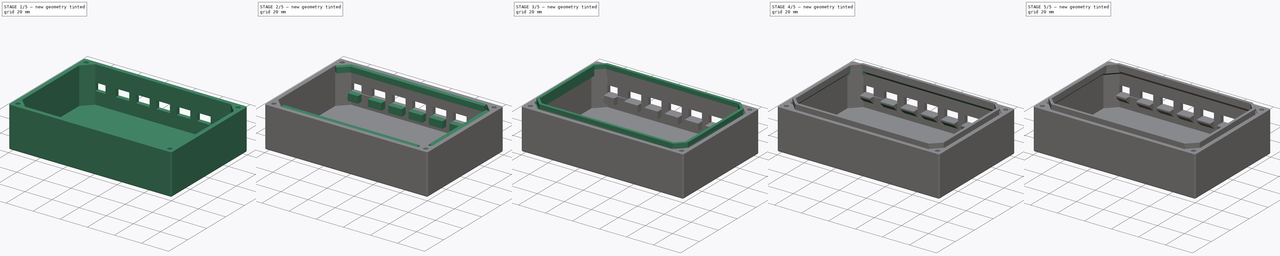
[diagram: build sequence overview — one tinted view per stage of 5, left to right]
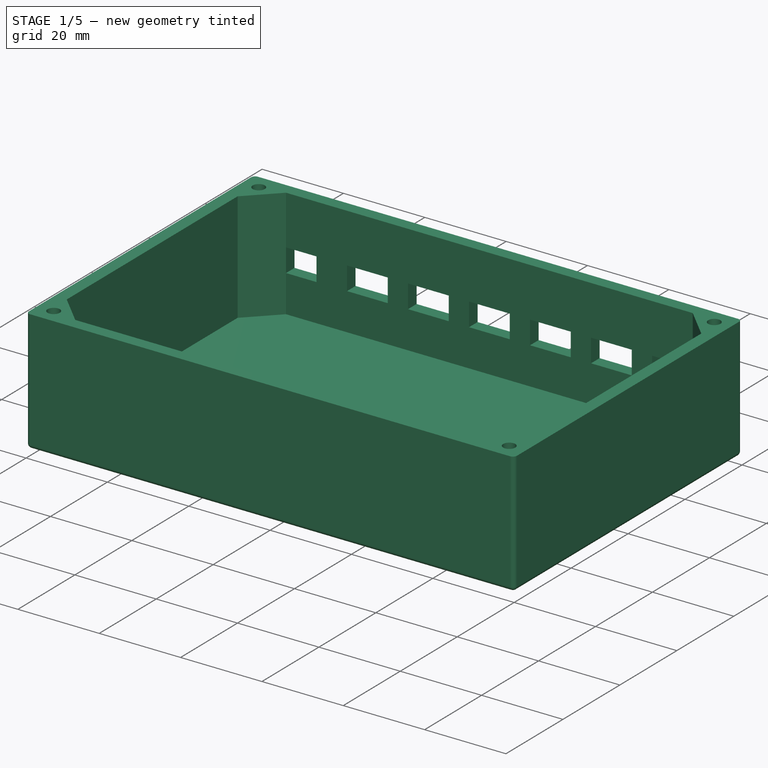
[diagram: stage 1 of 5 — iso view after this stage's code; geometry added in this stage tinted green]
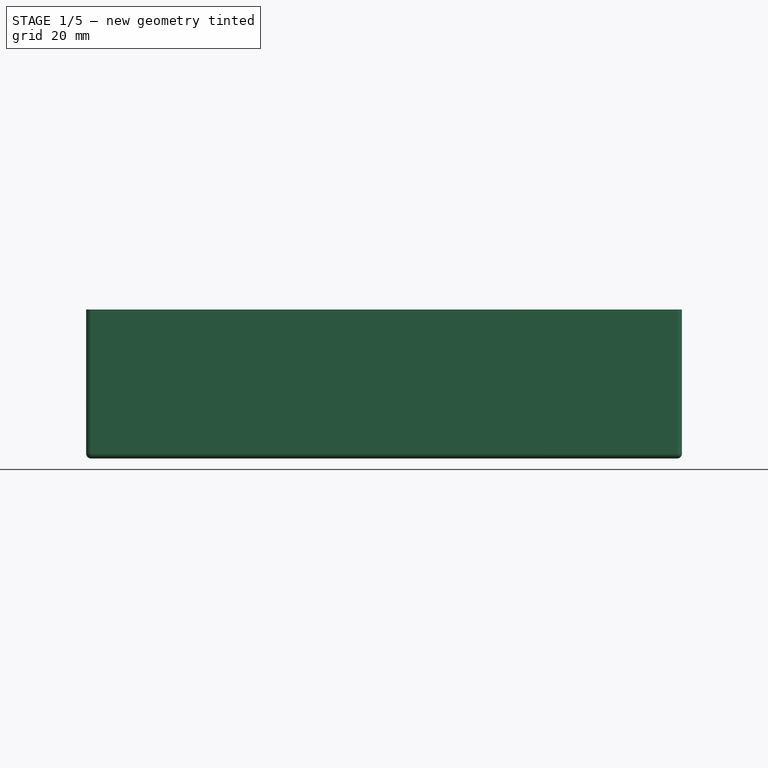
[diagram: stage 1 of 5 — front view after this stage's code; geometry added in this stage tinted green]
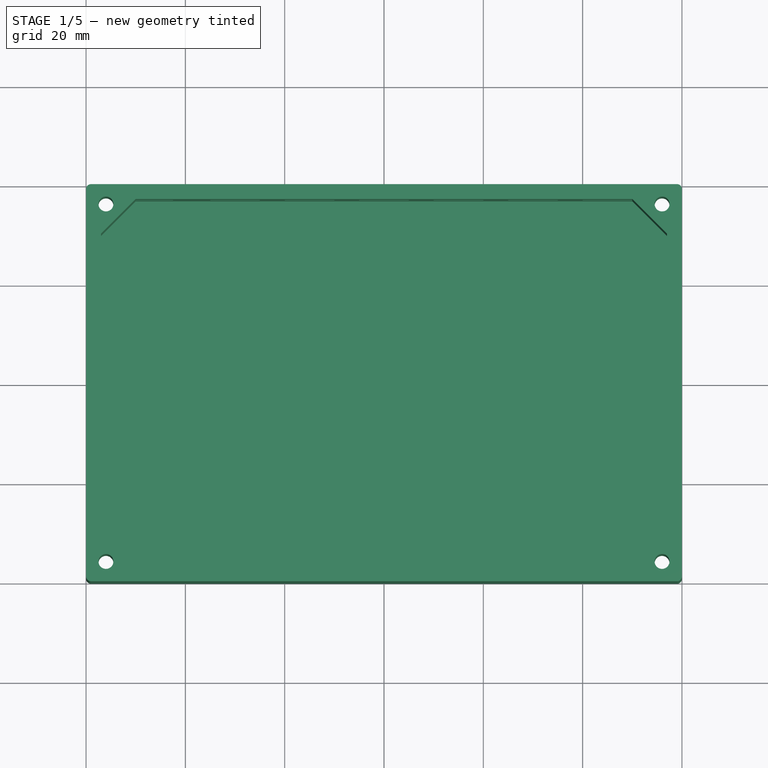
[diagram: stage 1 of 5 — top view after this stage's code; geometry added in this stage tinted green]
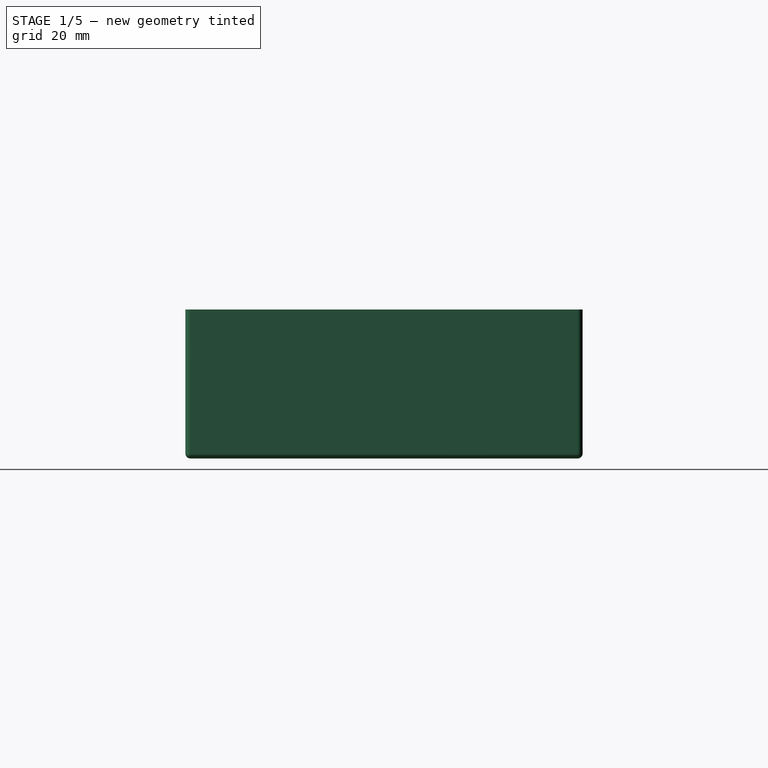
[diagram: stage 1 of 5 — right view after this stage's code; geometry added in this stage tinted green]
FCSTD DOCUMENT  (FreeCAD 0.18R4 (GitTag))
Label: case bottom
License: All rights reserved
LicenseURL: http://en.wikipedia.org/wiki/All_rights_reserved
objects: Sketcher::SketchObject×16, PartDesign::Pad×12, PartDesign::Chamfer×9, PartDesign::Pocket×4, PartDesign::Fillet×1, PartDesign::Body×1
note: 59 computed .brp shape members not serialized (recipe doc carries the construction recipe); baked Part::Feature solids carry a one-line shape summary decoded from their .brp

FEATURE [Sketcher::SketchObject] Sketch
  MapMode = 5
  Support = -> [XY_Plane]
  sketch-geometry (4):
    g0: LineSegment StartX=-60 StartY=40 StartZ=0 EndX=60 EndY=40 EndZ=0
    g1: LineSegment StartX=60 StartY=40 StartZ=0 EndX=60 EndY=-40 EndZ=0
    g2: LineSegment StartX=60 StartY=-40 StartZ=0 EndX=-60 EndY=-40 EndZ=0
    g3: LineSegment StartX=-60 StartY=-40 StartZ=0 EndX=-60 EndY=40 EndZ=0
  constraints (11):
    c: Coincident(g0,g1)
    c: Coincident(g1,g2)
    c: Coincident(g2,g3)
    c: Coincident(g3,g0)
    c: Horizontal(g0)
    c: Horizontal(g2)
    c: Vertical(g1)
    c: Vertical(g3)
    c: DistanceX(g0,g0) = 120
    c: DistanceY(g3,g3) = 80
    c: Symmetric(g2,g0,g-1)
FEATURE [PartDesign::Pad] Pad  label="Main Part"
  Length = 30
  Length2 = 100
  Profile = -> Sketch
  Type = 0
FEATURE [Sketcher::SketchObject] Sketch001
  MapMode = 5
  Placement = pos=(0,0,30) rot=(0,0,1;0rad)
  Support = -> [Pad]
  sketch-geometry (12):
    g0: LineSegment StartX=50 StartY=37 StartZ=0 EndX=-50 EndY=37 EndZ=0
    g1: LineSegment StartX=-50 StartY=37 StartZ=0 EndX=-57 EndY=30 EndZ=0
    g2: LineSegment StartX=-57 StartY=30 StartZ=0 EndX=-57 EndY=-30 EndZ=0
    g3: LineSegment StartX=-57 StartY=-30 StartZ=0 EndX=-50 EndY=-37 EndZ=0
    g4: LineSegment StartX=-50 StartY=-37 StartZ=0 EndX=50 EndY=-37 EndZ=0
    g5: LineSegment StartX=50 StartY=-37 StartZ=0 EndX=57 EndY=-30 EndZ=0
    g6: LineSegment StartX=57 StartY=-30 StartZ=0 EndX=57 EndY=30 EndZ=0
    g7: LineSegment StartX=57 StartY=30 StartZ=0 EndX=50 EndY=37 EndZ=0
    g8: Circle CenterX=-56 CenterY=36 CenterZ=0 NormalX=0 NormalY=0 NormalZ=1 AngleXU=0 Radius=1.5
    g9: Circle CenterX=56 CenterY=36 CenterZ=0 NormalX=0 NormalY=0 NormalZ=1 AngleXU=0 Radius=1.5
    g10: Circle CenterX=-56 CenterY=-36 CenterZ=0 NormalX=0 NormalY=0 NormalZ=1 AngleXU=0 Radius=1.5
    g11: Circle CenterX=56 CenterY=-36 CenterZ=0 NormalX=0 NormalY=0 NormalZ=1 AngleXU=0 Radius=1.5
  constraints (27):
    c: Coincident(g0,g1)
    c: Coincident(g1,g2)
    c: Coincident(g2,g3)
    c: Coincident(g3,g4)
    c: Coincident(g4,g5)
    c: Coincident(g5,g6)
    c: Coincident(g6,g7)
    c: Coincident(g7,g0)
    c: DistanceX(g0) = 50
    c: DistanceY(g0) = 37
    c: DistanceX(g6) = 57
    c: DistanceY(g6) = 30
    c: Symmetric(g0,g4,g-1)
    c: Symmetric(g6,g5,g-1)
    c: Symmetric(g4,g3,g-2)
    c: Symmetric(g5,g2,g-2)
    c: Symmetric(g0,g0,g-2)
    c: Symmetric(g6,g1,g-2)
    c: Radius(g8) = 1.5
    c: Radius(g9) = 1.5
    c: Radius(g11) = 1.5
    c: Radius(g10) = 1.5
    c: Distance(g9,g-2) = 56
    c: Distance(g9,g-1) = 36
    c: Symmetric(g9,g8,g-2)
    c: Symmetric(g8,g10,g-1)
    c: Symmetric(g10,g11,g-2)
FEATURE [PartDesign::Pocket] Pocket  label="Screw Wholes and Main Box"
  BaseFeature = -> Pad
  Length = 27
  Length2 = 100
  Profile = -> Sketch001
  Type = 0
FEATURE [Sketcher::SketchObject] Sketch002
  MapMode = 5
  Placement = pos=(0,0,0) rot=(1,0,0;3.14159rad)
  Support = -> [Pocket]
  sketch-geometry (28):
    g0: LineSegment StartX=-54.45 StartY=33.3153 StartZ=0 EndX=-52.9 EndY=36 EndZ=0
    g1: LineSegment StartX=-52.9 StartY=36 StartZ=0 EndX=-54.45 EndY=38.6847 EndZ=0
    g2: LineSegment StartX=-54.45 StartY=38.6847 StartZ=0 EndX=-57.55 EndY=38.6847 EndZ=0
    g3: LineSegment StartX=-57.55 StartY=38.6847 StartZ=0 EndX=-59.1 EndY=36 EndZ=0
    g4: LineSegment StartX=-59.1 StartY=36 StartZ=0 EndX=-57.55 EndY=33.3153 EndZ=0
    g5: LineSegment StartX=-57.55 StartY=33.3153 StartZ=0 EndX=-54.45 EndY=33.3153 EndZ=0
    g6: Circle [constr] CenterX=-56 CenterY=36 CenterZ=0 NormalX=0 NormalY=0 NormalZ=1 AngleXU=0 Radius=3.1
    g7: LineSegment StartX=52.9281 StartY=36.4167 StartZ=0 EndX=54.1032 EndY=33.5481 EndZ=0
    g8: LineSegment StartX=54.1032 StartY=33.5481 StartZ=0 EndX=57.175 EndY=33.1313 EndZ=0
    g9: LineSegment StartX=57.175 StartY=33.1313 StartZ=0 EndX=59.0719 EndY=35.5833 EndZ=0
    g10: LineSegment StartX=59.0719 StartY=35.5833 StartZ=0 EndX=57.8968 EndY=38.4519 EndZ=0
    g11: LineSegment StartX=57.8968 StartY=38.4519 StartZ=0 EndX=54.825 EndY=38.8687 EndZ=0
    g12: LineSegment StartX=54.825 StartY=38.8687 StartZ=0 EndX=52.9281 EndY=36.4167 EndZ=0
    g13: Circle [constr] CenterX=56 CenterY=36 CenterZ=0 NormalX=0 NormalY=0 NormalZ=1 AngleXU=0 Radius=3.1
    g14: LineSegment StartX=-52.9528 StartY=-36.5696 StartZ=0 EndX=-53.9831 EndY=-33.6458 EndZ=0
    g15: LineSegment StartX=-53.9831 StartY=-33.6458 StartZ=0 EndX=-57.0303 EndY=-33.0762 EndZ=0
    g16: LineSegment StartX=-57.0303 StartY=-33.0762 StartZ=0 EndX=-59.0472 EndY=-35.4304 EndZ=0
    g17: LineSegment StartX=-59.0472 StartY=-35.4304 StartZ=0 EndX=-58.0169 EndY=-38.3542 EndZ=0
    g18: LineSegment StartX=-58.0169 StartY=-38.3542 StartZ=0 EndX=-54.9697 EndY=-38.9238 EndZ=0
    g19: LineSegment StartX=-54.9697 StartY=-38.9238 StartZ=0 EndX=-52.9528 EndY=-36.5696 EndZ=0
    g20: Circle [constr] CenterX=-56 CenterY=-36 CenterZ=0 NormalX=0 NormalY=0 NormalZ=1 AngleXU=0 Radius=3.1
    g21: LineSegment StartX=55.1473 StartY=-33.0196 StartZ=0 EndX=52.9925 EndY=-35.2482 EndZ=0
    g22: LineSegment StartX=52.9925 StartY=-35.2482 StartZ=0 EndX=53.8452 EndY=-38.2287 EndZ=0
    g23: LineSegment StartX=53.8452 StartY=-38.2287 StartZ=0 EndX=56.8527 EndY=-38.9804 EndZ=0
    g24: LineSegment StartX=56.8527 StartY=-38.9804 StartZ=0 EndX=59.0075 EndY=-36.7518 EndZ=0
    g25: LineSegment StartX=59.0075 StartY=-36.7518 StartZ=0 EndX=58.1548 EndY=-33.7713 EndZ=0
    g26: LineSegment StartX=58.1548 StartY=-33.7713 StartZ=0 EndX=55.1473 EndY=-33.0196 EndZ=0
    g27: Circle [constr] CenterX=56 CenterY=-36 CenterZ=0 NormalX=0 NormalY=0 NormalZ=1 AngleXU=0 Radius=3.1
  constraints (62):
    c: Coincident(g0,g1)
    c: Coincident(g1,g2)
    c: Coincident(g2,g3)
    c: Coincident(g3,g4)
    c: Coincident(g4,g5)
    c: Coincident(g5,g0)
    c: Equal(g0, g1-g5) x5
    c: PointOnObject(g0,g6)
    c: PointOnObject(g1,g6)
    c: PointOnObject(g2,g6)
    c: PointOnObject(g3,g6)
    c: PointOnObject(g4,g6)
    c: PointOnObject(g5,g6)
    c: Radius(g6) = 3.1
    c: DistanceX(g6) = -56
    c: DistanceY(g6) = 36
    c: Parallel(g2,g-1)
    c: Coincident(g7,g8)
    c: Coincident(g8,g9)
    c: Coincident(g9,g10)
    c: Coincident(g10,g11)
    c: Coincident(g11,g12)
    c: Coincident(g12,g7)
    c: Equal(g7, g8-g12) x5
    c: PointOnObject(g7,g13)
    c: PointOnObject(g8,g13)
    c: PointOnObject(g9,g13)
    c: PointOnObject(g10,g13)
    c: PointOnObject(g11,g13)
    c: PointOnObject(g12,g13)
    c: Coincident(g14,g15)
    c: Coincident(g15,g16)
    c: Coincident(g16,g17)
    c: Coincident(g17,g18)
    c: Coincident(g18,g19)
    c: Coincident(g19,g14)
    c: Equal(g14, g15-g19) x5
    c: PointOnObject(g14,g20)
    c: PointOnObject(g15,g20)
    c: PointOnObject(g16,g20)
    c: PointOnObject(g17,g20)
    c: PointOnObject(g18,g20)
    c: PointOnObject(g19,g20)
    c: Coincident(g21,g22)
    c: Coincident(g22,g23)
    c: Coincident(g23,g24)
    c: Coincident(g24,g25)
    c: Coincident(g25,g26)
    c: Coincident(g26,g21)
    c: Equal(g21, g22-g26) x5
    c: PointOnObject(g21,g27)
    c: PointOnObject(g22,g27)
    c: PointOnObject(g23,g27)
    c: PointOnObject(g24,g27)
    c: PointOnObject(g25,g27)
    c: PointOnObject(g26,g27)
    c: Radius(g13) = 3.1
    c: Radius(g27) = 3.1
    c: Radius(g20) = 3.1
    c: Symmetric(g6,g13,g-2)
    c: Symmetric(g6,g20,g-1)
    c: Symmetric(g13,g27,g-1)
FEATURE [PartDesign::Pocket] Pocket001  label="Bottom Nuts"
  BaseFeature = -> Pocket
  Length = 7.5
  Length2 = 100
  Profile = -> Sketch002
  Type = 0
FEATURE [PartDesign::Fillet] Fillet  label="Round Box Edges"
  Base = -> Pocket001 [Edge2,Edge3,Edge1,Edge6,Edge5,Edge11,Edge8,Edge9]
  BaseFeature = -> Pocket001
  Radius = 1
FEATURE [Sketcher::SketchObject] Sketch003
  MapMode = 5
  Placement = pos=(0,40,0) rot=(0,0.707107,0.707107;3.14159rad)
  Support = -> [Fillet]
  sketch-geometry (28):
    g0: LineSegment StartX=-50 StartY=17.85 StartZ=0 EndX=-40 EndY=17.85 EndZ=0
    g1: LineSegment StartX=-40 StartY=17.85 StartZ=0 EndX=-40 EndY=12.15 EndZ=0
    g2: LineSegment StartX=-40 StartY=12.15 StartZ=0 EndX=-50 EndY=12.15 EndZ=0
    g3: LineSegment StartX=-50 StartY=12.15 StartZ=0 EndX=-50 EndY=17.85 EndZ=0
    g4: LineSegment StartX=-35 StartY=17.85 StartZ=0 EndX=-25 EndY=17.85 EndZ=0
    g5: LineSegment StartX=-25 StartY=17.85 StartZ=0 EndX=-25 EndY=12.15 EndZ=0
    g6: LineSegment StartX=-25 StartY=12.15 StartZ=0 EndX=-35 EndY=12.15 EndZ=0
    g7: LineSegment StartX=-35 StartY=12.15 StartZ=0 EndX=-35 EndY=17.85 EndZ=0
    g8: LineSegment StartX=-20 StartY=17.85 StartZ=0 EndX=-10 EndY=17.85 EndZ=0
    g9: LineSegment StartX=-10 StartY=17.85 StartZ=0 EndX=-10 EndY=12.15 EndZ=0
    g10: LineSegment StartX=-10 StartY=12.15 StartZ=0 EndX=-20 EndY=12.15 EndZ=0
    g11: LineSegment StartX=-20 StartY=12.15 StartZ=0 EndX=-20 EndY=17.85 EndZ=0
    g12: LineSegment StartX=-5 StartY=17.85 StartZ=0 EndX=5 EndY=17.85 EndZ=0
    g13: LineSegment StartX=5 StartY=17.85 StartZ=0 EndX=5 EndY=12.15 EndZ=0
    g14: LineSegment StartX=5 StartY=12.15 StartZ=0 EndX=-5 EndY=12.15 EndZ=0
    g15: LineSegment StartX=-5 StartY=12.15 StartZ=0 EndX=-5 EndY=17.85 EndZ=0
    g16: LineSegment StartX=10 StartY=17.85 StartZ=0 EndX=20 EndY=17.85 EndZ=0
    g17: LineSegment StartX=20 StartY=17.85 StartZ=0 EndX=20 EndY=12.15 EndZ=0
    g18: LineSegment StartX=20 StartY=12.15 StartZ=0 EndX=10 EndY=12.15 EndZ=0
    g19: LineSegment StartX=10 StartY=12.15 StartZ=0 EndX=10 EndY=17.85 EndZ=0
    g20: LineSegment StartX=25 StartY=17.85 StartZ=0 EndX=35 EndY=17.85 EndZ=0
    g21: LineSegment StartX=35 StartY=17.85 StartZ=0 EndX=35 EndY=12.15 EndZ=0
    g22: LineSegment StartX=35 StartY=12.15 StartZ=0 EndX=25 EndY=12.15 EndZ=0
    g23: LineSegment StartX=25 StartY=12.15 StartZ=0 EndX=25 EndY=17.85 EndZ=0
    g24: LineSegment StartX=42.5 StartY=17.85 StartZ=0 EndX=50 EndY=17.85 EndZ=0
    g25: LineSegment StartX=50 StartY=17.85 StartZ=0 EndX=50 EndY=12.15 EndZ=0
    g26: LineSegment StartX=50 StartY=12.15 StartZ=0 EndX=42.5 EndY=12.15 EndZ=0
    g27: LineSegment StartX=42.5 StartY=12.15 StartZ=0 EndX=42.5 EndY=17.85 EndZ=0
  constraints (84):
    c: Coincident(g0,g1)
    c: Coincident(g1,g2)
    c: Coincident(g2,g3)
    c: Coincident(g3,g0)
    c: Horizontal(g0)
    c: Horizontal(g2)
    c: Vertical(g1)
    c: Vertical(g3)
    c: DistanceX(g0,g0) = 10
    c: DistanceY(g3,g3) = 5.7
    c: Coincident(g4,g5)
    c: Coincident(g5,g6)
    c: Coincident(g6,g7)
    c: Coincident(g7,g4)
    c: Horizontal(g4)
    c: Horizontal(g6)
    c: Vertical(g5)
    c: Vertical(g7)
    c: Equal(g0,g4) = 10
    c: Equal(g3,g7) = 5.7
    c: Coincident(g8,g9)
    c: Coincident(g9,g10)
    c: Coincident(g10,g11)
    c: Coincident(g11,g8)
    c: Horizontal(g8)
    c: Horizontal(g10)
    c: Vertical(g9)
    c: Vertical(g11)
    c: Equal(g0,g8) = 10
    c: Equal(g3,g11) = 5.7
    c: DistanceX(g9) = -10
    c: DistanceY(g9) = 12.15
    c: DistanceX(g5) = -25
    c: DistanceY(g5) = 12.15
    c: DistanceX(g1) = -40
    c: DistanceY(g1) = 12.15
    c: Coincident(g12,g13)
    c: Coincident(g13,g14)
    c: Coincident(g14,g15)
    c: Coincident(g15,g12)
    c: Horizontal(g12)
    c: Horizontal(g14)
    c: Vertical(g13)
    c: Vertical(g15)
    c: Equal(g0,g12) = 10
    c: Equal(g3,g15) = 5.7
    c: Coincident(g16,g17)
    c: Coincident(g17,g18)
    c: Coincident(g18,g19)
    c: Coincident(g19,g16)
    c: Horizontal(g16)
    c: Horizontal(g18)
    c: Vertical(g17)
    c: Vertical(g19)
    c: Equal(g12,g16) = 10
    c: Equal(g15,g19) = 5.7
    c: Coincident(g20,g21)
    c: Coincident(g21,g22)
    c: Coincident(g22,g23)
    c: Coincident(g23,g20)
    c: Horizontal(g20)
    c: Horizontal(g22)
    c: Vertical(g21)
    c: Vertical(g23)
    c: Equal(g12,g20) = 10
    c: Equal(g15,g23) = 5.7
    c: DistanceX(g14) = -5
    c: DistanceY(g14) = 12.15
    c: DistanceX(g18) = 10
    c: DistanceY(g18) = 12.15
    c: DistanceX(g22) = 25
    c: DistanceY(g22) = 12.15
    c: Coincident(g24,g25)
    c: Coincident(g25,g26)
    c: Coincident(g26,g27)
    c: Coincident(g27,g24)
    c: Horizontal(g24)
    c: Horizontal(g26)
    c: Vertical(g25)
    c: Vertical(g27)
    c: DistanceX(g24,g24) = 7.5
    c: DistanceY(g27,g27) = 5.7
    c: DistanceX(g26) = 42.5
    c: DistanceY(g26) = 12.15
FEATURE [PartDesign::Pocket] Pocket002  label="Front JST Wholes"
  BaseFeature = -> Fillet
  Length = 5
  Length2 = 100
  Profile = -> Sketch003
  Type = 0
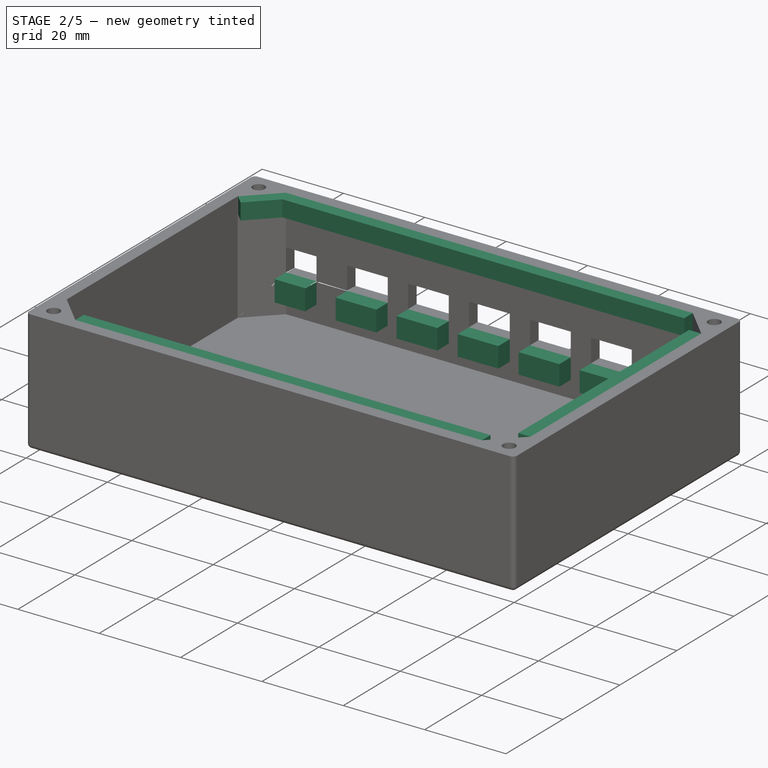
[diagram: stage 2 of 5 — iso view after this stage's code; geometry added in this stage tinted green]
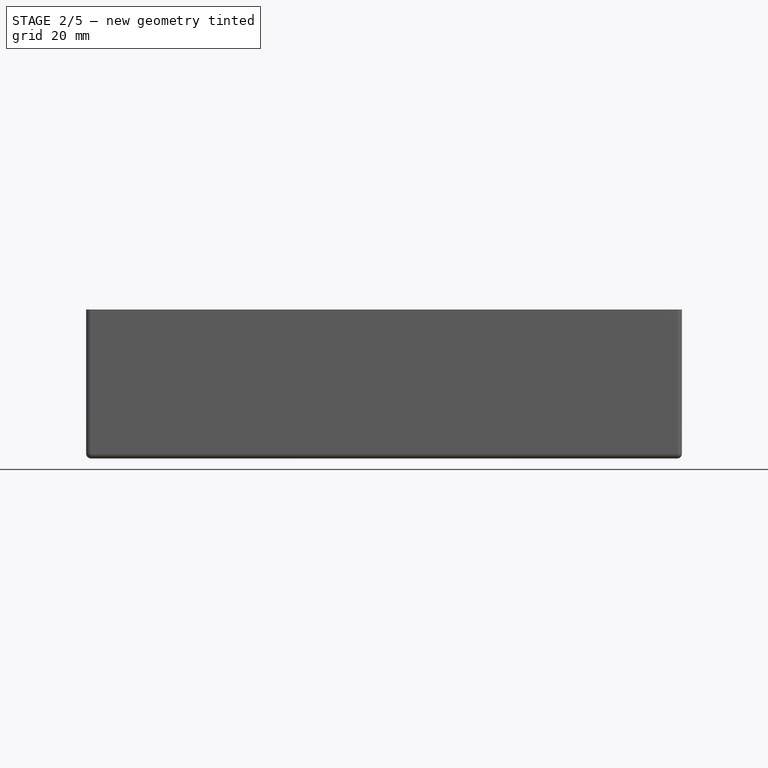
[diagram: stage 2 of 5 — front view after this stage's code; geometry added in this stage tinted green]
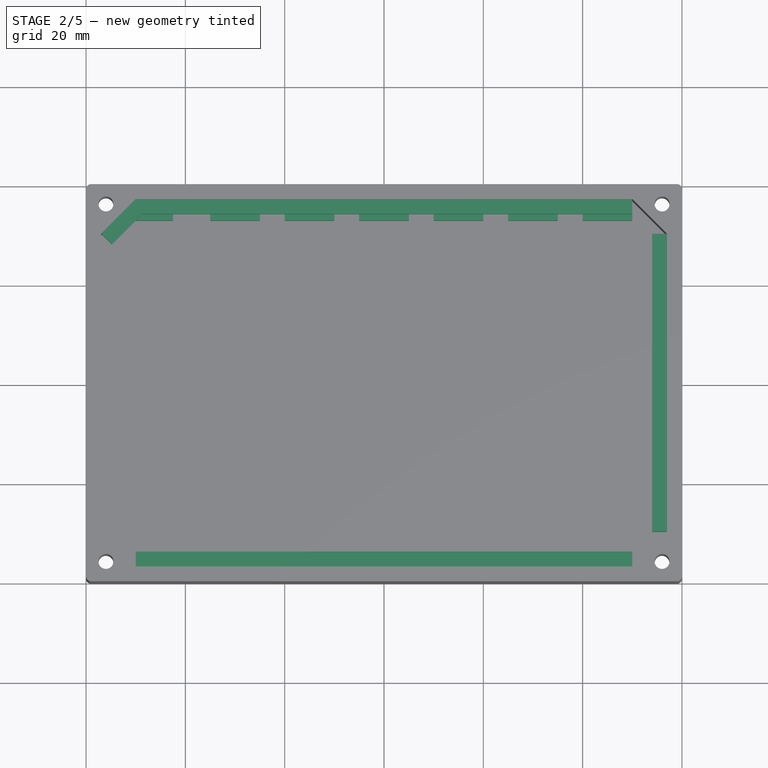
[diagram: stage 2 of 5 — top view after this stage's code; geometry added in this stage tinted green]
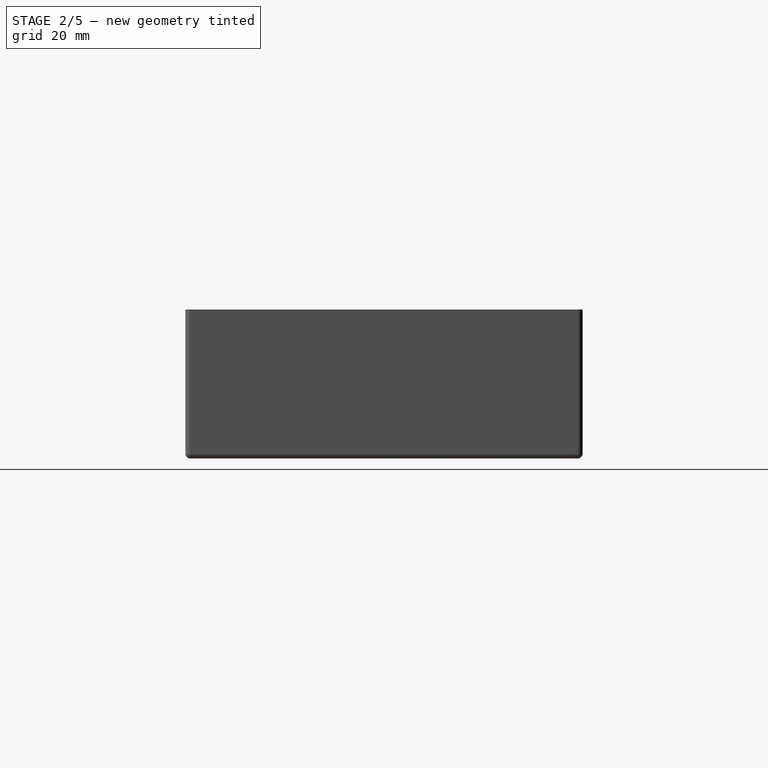
[diagram: stage 2 of 5 — right view after this stage's code; geometry added in this stage tinted green]
FEATURE [Sketcher::SketchObject] Sketch005
  MapMode = 5
  Placement = pos=(0,37,0) rot=(1,0,0;1.5708rad)
  sketch-geometry (28):
    g0: LineSegment StartX=-5 StartY=7.15 StartZ=0 EndX=5 EndY=7.15 EndZ=0
    g1: LineSegment StartX=5 StartY=7.15 StartZ=0 EndX=5 EndY=12.15 EndZ=0
    g2: LineSegment StartX=5 StartY=12.15 StartZ=0 EndX=-5 EndY=12.15 EndZ=0
    g3: LineSegment StartX=-5 StartY=12.15 StartZ=0 EndX=-5 EndY=7.15 EndZ=0
    g4: LineSegment StartX=10 StartY=7.15 StartZ=0 EndX=20 EndY=7.15 EndZ=0
    g5: LineSegment StartX=20 StartY=7.15 StartZ=0 EndX=20 EndY=12.15 EndZ=0
    g6: LineSegment StartX=20 StartY=12.15 StartZ=0 EndX=10 EndY=12.15 EndZ=0
    g7: LineSegment StartX=10 StartY=12.15 StartZ=0 EndX=10 EndY=7.15 EndZ=0
    g8: LineSegment StartX=25 StartY=7.15 StartZ=0 EndX=35 EndY=7.15 EndZ=0
    g9: LineSegment StartX=35 StartY=7.15 StartZ=0 EndX=35 EndY=12.15 EndZ=0
    g10: LineSegment StartX=35 StartY=12.15 StartZ=0 EndX=25 EndY=12.15 EndZ=0
    g11: LineSegment StartX=25 StartY=12.15 StartZ=0 EndX=25 EndY=7.15 EndZ=0
    g12: LineSegment StartX=40 StartY=7.15 StartZ=0 EndX=50 EndY=7.15 EndZ=0
    g13: LineSegment StartX=50 StartY=7.15 StartZ=0 EndX=50 EndY=12.15 EndZ=0
    g14: LineSegment StartX=50 StartY=12.15 StartZ=0 EndX=40 EndY=12.15 EndZ=0
    g15: LineSegment StartX=40 StartY=12.15 StartZ=0 EndX=40 EndY=7.15 EndZ=0
    g16: LineSegment StartX=-20 StartY=7.15 StartZ=0 EndX=-10 EndY=7.15 EndZ=0
    g17: LineSegment StartX=-10 StartY=7.15 StartZ=0 EndX=-10 EndY=12.15 EndZ=0
    g18: LineSegment StartX=-10 StartY=12.15 StartZ=0 EndX=-20 EndY=12.15 EndZ=0
    g19: LineSegment StartX=-20 StartY=12.15 StartZ=0 EndX=-20 EndY=7.15 EndZ=0
    g20: LineSegment StartX=-35 StartY=7.15 StartZ=0 EndX=-25.0044 EndY=7.15 EndZ=0
    g21: LineSegment StartX=-25.0044 StartY=7.15 StartZ=0 EndX=-25.0044 EndY=12.2189 EndZ=0
    g22: LineSegment StartX=-25.0044 StartY=12.2189 StartZ=0 EndX=-35 EndY=12.2189 EndZ=0
    g23: LineSegment StartX=-35 StartY=12.2189 StartZ=0 EndX=-35 EndY=7.15 EndZ=0
    g24: LineSegment StartX=-50 StartY=7.15 StartZ=0 EndX=-42.5 EndY=7.15 EndZ=0
    g25: LineSegment StartX=-42.5 StartY=7.15 StartZ=0 EndX=-42.5 EndY=12.3065 EndZ=0
    g26: LineSegment StartX=-42.5 StartY=12.3065 StartZ=0 EndX=-50 EndY=12.3065 EndZ=0
    g27: LineSegment StartX=-50 StartY=12.3065 StartZ=0 EndX=-50 EndY=7.15 EndZ=0
  constraints (81):
    c: Coincident(g0,g1)
    c: Coincident(g1,g2)
    c: Coincident(g2,g3)
    c: Coincident(g3,g0)
    c: Horizontal(g0)
    c: Horizontal(g2)
    c: Vertical(g1)
    c: Vertical(g3)
    c: DistanceX(g2,g2) = 10
    c: DistanceY(g1,g1) = 5
    c: Distance(g1,g-2) = 5
    c: Distance(g-1,g0) = 7.15
    c: Coincident(g4,g5)
    c: Coincident(g5,g6)
    c: Coincident(g6,g7)
    c: Coincident(g7,g4)
    c: Horizontal(g4)
    c: Horizontal(g6)
    c: Vertical(g5)
    c: Vertical(g7)
    c: Equal(g2,g6) = 10
    c: Equal(g1,g5) = 5
    c: Coincident(g8,g9)
    c: Coincident(g9,g10)
    c: Coincident(g10,g11)
    c: Coincident(g11,g8)
    c: Horizontal(g8)
    c: Horizontal(g10)
    c: Vertical(g9)
    c: Vertical(g11)
    c: Equal(g2,g10) = 10
    c: Equal(g1,g9) = 5
    c: Coincident(g12,g13)
    c: Coincident(g13,g14)
    c: Coincident(g14,g15)
    c: Coincident(g15,g12)
    c: Horizontal(g12)
    c: Horizontal(g14)
    c: Vertical(g13)
    c: Vertical(g15)
    c: Equal(g2,g14) = 10
    c: Equal(g1,g13) = 5
    c: Coincident(g16,g17)
    c: Coincident(g17,g18)
    c: Coincident(g18,g19)
    c: Coincident(g19,g16)
    c: Horizontal(g16)
    c: Horizontal(g18)
    c: Vertical(g17)
    c: Vertical(g19)
    c: Equal(g2,g18) = 10
    c: Equal(g1,g17) = 5
    c: Coincident(g20,g21)
    c: Coincident(g21,g22)
    c: Coincident(g22,g23)
    c: Coincident(g23,g20)
    c: Horizontal(g20)
    c: Horizontal(g22)
    c: Vertical(g21)
    c: Vertical(g23)
    c: Coincident(g24,g25)
    c: Coincident(g25,g26)
    c: Coincident(g26,g27)
    c: Coincident(g27,g24)
    c: Horizontal(g24)
    c: Horizontal(g26)
    c: Vertical(g25)
    c: Vertical(g27)
    c: DistanceX(g26,g26) = 7.5
    c: DistanceX(g4) = 10
    c: DistanceY(g4) = 7.15
    c: DistanceX(g8) = 25
    c: DistanceY(g8) = 7.15
    c: DistanceX(g12) = 40
    c: DistanceY(g12) = 7.15
    c: DistanceX(g16) = -10
    c: DistanceY(g16) = 7.15
    c: DistanceX(g20) = -35
    c: DistanceY(g20) = 7.15
    c: DistanceX(g24) = -42.5
    c: DistanceY(g24) = 7.15
FEATURE [Sketcher::SketchObject] Sketch006
  MapMode = 5
  Placement = pos=(0,-37,0) rot=(0,0.707107,0.707107;3.14159rad)
  sketch-geometry (4):
    g0: LineSegment StartX=-50 StartY=30 StartZ=0 EndX=50 EndY=30 EndZ=0
    g1: LineSegment StartX=50 StartY=30 StartZ=0 EndX=50 EndY=26 EndZ=0
    g2: LineSegment StartX=50 StartY=26 StartZ=0 EndX=-50 EndY=26 EndZ=0
    g3: LineSegment StartX=-50 StartY=26 StartZ=0 EndX=-50 EndY=30 EndZ=0
  constraints (12):
    c: Coincident(g0,g1)
    c: Coincident(g1,g2)
    c: Coincident(g2,g3)
    c: Coincident(g3,g0)
    c: Horizontal(g0)
    c: Horizontal(g2)
    c: Vertical(g1)
    c: Vertical(g3)
    c: DistanceX(g0) = 50
    c: DistanceY(g0) = 30
    c: DistanceY(g1,g1) = 4
    c: DistanceX(g2,g2) = 100
FEATURE [Sketcher::SketchObject] CopySketch007
  Placement = pos=(0,37,0) rot=(1,0,0;1.5708rad)
  sketch-geometry (4):
    g0: LineSegment StartX=-50 StartY=30 StartZ=0 EndX=50 EndY=30 EndZ=0
    g1: LineSegment StartX=50 StartY=30 StartZ=0 EndX=50 EndY=26 EndZ=0
    g2: LineSegment StartX=50 StartY=26 StartZ=0 EndX=-50 EndY=26 EndZ=0
    g3: LineSegment StartX=-50 StartY=26 StartZ=0 EndX=-50 EndY=30 EndZ=0
  constraints (12):
    c: Coincident(g0,g1)
    c: Coincident(g1,g2)
    c: Coincident(g2,g3)
    c: Coincident(g3,g0)
    c: Horizontal(g0)
    c: Horizontal(g2)
    c: Vertical(g1)
    c: Vertical(g3)
    c: DistanceX(g0) = 50
    c: DistanceY(g0) = 30
    c: DistanceY(g1,g1) = 4
    c: DistanceX(g2,g2) = 100
FEATURE [Sketcher::SketchObject] Sketch007
  MapMode = 5
  Placement = pos=(57,0,0) rot=(0.57735,-0.57735,-0.57735;2.0944rad)
  sketch-geometry (4):
    g0: LineSegment StartX=-30 StartY=30 StartZ=0 EndX=30 EndY=30 EndZ=0
    g1: LineSegment StartX=30 StartY=30 StartZ=0 EndX=30 EndY=26 EndZ=0
    g2: LineSegment StartX=30 StartY=26 StartZ=0 EndX=-30 EndY=26 EndZ=0
    g3: LineSegment StartX=-30 StartY=26 StartZ=0 EndX=-30 EndY=30 EndZ=0
  constraints (12):
    c: Coincident(g0,g1)
    c: Coincident(g1,g2)
    c: Coincident(g2,g3)
    c: Coincident(g3,g0)
    c: Horizontal(g0)
    c: Horizontal(g2)
    c: Vertical(g1)
    c: Vertical(g3)
    c: DistanceX(g0) = 30
    c: DistanceY(g0) = 30
    c: DistanceX(g0,g0) = 60
    c: DistanceY(g1,g1) = 4
FEATURE [Sketcher::SketchObject] Sketch009
  MapMode = 5
  Placement = pos=(-43.5,43.5,0) rot=(0.862856,0.357407,0.357407;1.71777rad)
  sketch-geometry (4):
    g0: LineSegment StartX=-19 StartY=30 StartZ=0 EndX=-9 EndY=30 EndZ=0
    g1: LineSegment StartX=-9 StartY=30 StartZ=0 EndX=-9 EndY=26 EndZ=0
    g2: LineSegment StartX=-9 StartY=26 StartZ=0 EndX=-19 EndY=26 EndZ=0
    g3: LineSegment StartX=-19 StartY=26 StartZ=0 EndX=-19 EndY=30 EndZ=0
  constraints (12):
    c: Coincident(g0,g1)
    c: Coincident(g1,g2)
    c: Coincident(g2,g3)
    c: Coincident(g3,g0)
    c: Horizontal(g0)
    c: Horizontal(g2)
    c: Vertical(g1)
    c: Vertical(g3)
    c: DistanceX(g0) = -9
    c: DistanceY(g0) = 30
    c: DistanceX(g0,g0) = 10
    c: DistanceY(g3,g3) = 4
FEATURE [Sketcher::SketchObject] CopySketch010
  Placement = pos=(-43.5,-43.5,0) rot=(0.281085,0.678598,0.678598;2.59356rad)
  sketch-geometry (4):
    g0: LineSegment StartX=9 StartY=30 StartZ=0 EndX=19 EndY=30 EndZ=0
    g1: LineSegment StartX=19 StartY=30 StartZ=0 EndX=19 EndY=26 EndZ=0
    g2: LineSegment StartX=19 StartY=26 StartZ=0 EndX=9 EndY=26 EndZ=0
    g3: LineSegment StartX=9 StartY=26 StartZ=0 EndX=9 EndY=30 EndZ=0
  constraints (12):
    c: Coincident(g0,g1)
    c: Coincident(g1,g2)
    c: Coincident(g2,g3)
    c: Coincident(g3,g0)
    c: Horizontal(g0)
    c: Horizontal(g2)
    c: Vertical(g1)
    c: Vertical(g3)
    c: DistanceX(g0) = 19
    c: DistanceY(g0) = 30
    c: DistanceX(g0,g0) = 10
    c: DistanceY(g3,g3) = 4
FEATURE [Sketcher::SketchObject] CopySketch010001  label="CopySketch011"
  Placement = pos=(43.5,-43.5,0) rot=(-0.281085,0.678598,0.678598;3.68962rad)
  sketch-geometry (4):
    g0: LineSegment StartX=-19 StartY=30 StartZ=0 EndX=-9 EndY=30 EndZ=0
    g1: LineSegment StartX=-9 StartY=30 StartZ=0 EndX=-9 EndY=26 EndZ=0
    g2: LineSegment StartX=-9 StartY=26 StartZ=0 EndX=-19 EndY=26 EndZ=0
    g3: LineSegment StartX=-19 StartY=26 StartZ=0 EndX=-19 EndY=30 EndZ=0
  constraints (12):
    c: Coincident(g0,g1)
    c: Coincident(g1,g2)
    c: Coincident(g2,g3)
    c: Coincident(g3,g0)
    c: Horizontal(g0)
    c: Horizontal(g2)
    c: Vertical(g1)
    c: Vertical(g3)
    c: DistanceX(g0) = -9
    c: DistanceY(g0) = 30
    c: DistanceX(g0,g0) = 10
    c: DistanceY(g3,g3) = 4
FEATURE [Sketcher::SketchObject] CopySketch010002  label="CopySketch012"
  Placement = pos=(43.5,43.5,0) rot=(0.862856,-0.357407,-0.357407;1.71777rad)
  sketch-geometry (4):
    g0: LineSegment StartX=9 StartY=30 StartZ=0 EndX=19 EndY=30 EndZ=0
    g1: LineSegment StartX=19 StartY=30 StartZ=0 EndX=19 EndY=26 EndZ=0
    g2: LineSegment StartX=19 StartY=26 StartZ=0 EndX=9 EndY=26 EndZ=0
    g3: LineSegment StartX=9 StartY=26 StartZ=0 EndX=9 EndY=30 EndZ=0
  constraints (12):
    c: Coincident(g0,g1)
    c: Coincident(g1,g2)
    c: Coincident(g2,g3)
    c: Coincident(g3,g0)
    c: Horizontal(g0)
    c: Horizontal(g2)
    c: Vertical(g1)
    c: Vertical(g3)
    c: DistanceX(g0) = 19
    c: DistanceY(g0) = 30
    c: DistanceX(g0,g0) = 10
    c: DistanceY(g3,g3) = 4
FEATURE [Sketcher::SketchObject] Sketch010
  AttachmentOffset = pos=(0,0,30) rot=(0,0,1;0rad)
  MapMode = 5
  Placement = pos=(0,0,30) rot=(0,0,1;0rad)
  Support = -> [XY_Plane]
  sketch-geometry (16):
    g0: LineSegment StartX=-50 StartY=37.2 StartZ=0 EndX=50 EndY=37.2 EndZ=0
    g1: LineSegment StartX=50 StartY=37.2 StartZ=0 EndX=57.2 EndY=30 EndZ=0
    g2: LineSegment StartX=57.2 StartY=30 StartZ=0 EndX=57.2 EndY=-30 EndZ=0
    g3: LineSegment StartX=57.2 StartY=-30 StartZ=0 EndX=50 EndY=-37.2 EndZ=0
    g4: LineSegment StartX=50 StartY=-37.2 StartZ=0 EndX=-50 EndY=-37.2 EndZ=0
    g5: LineSegment StartX=-50 StartY=-37.2 StartZ=0 EndX=-57.2 EndY=-30 EndZ=0
    g6: LineSegment StartX=-57.2 StartY=-30 StartZ=0 EndX=-57.2 EndY=30 EndZ=0
    g7: LineSegment StartX=-57.2 StartY=30 StartZ=0 EndX=-50 EndY=37.2 EndZ=0
    g8: LineSegment StartX=-49.5 StartY=36 StartZ=0 EndX=49.5 EndY=36 EndZ=0
    g9: LineSegment StartX=49.5 StartY=36 StartZ=0 EndX=56 EndY=29.5 EndZ=0
    g10: LineSegment StartX=56 StartY=29.5 StartZ=0 EndX=56 EndY=-29.5 EndZ=0
    g11: LineSegment StartX=56 StartY=-29.5 StartZ=0 EndX=49.5 EndY=-36 EndZ=0
    g12: LineSegment StartX=49.5 StartY=-36 StartZ=0 EndX=-49.5 EndY=-36 EndZ=0
    g13: LineSegment StartX=-49.5 StartY=-36 StartZ=0 EndX=-56 EndY=-29.5 EndZ=0
    g14: LineSegment StartX=-56 StartY=-29.5 StartZ=0 EndX=-56 EndY=29.5 EndZ=0
    g15: LineSegment StartX=-56 StartY=29.5 StartZ=0 EndX=-49.5 EndY=36 EndZ=0
  constraints (36):
    c: Coincident(g0,g1)
    c: Coincident(g1,g2)
    c: Coincident(g2,g3)
    c: Coincident(g3,g4)
    c: Coincident(g4,g5)
    c: Coincident(g5,g6)
    c: Coincident(g6,g7)
    c: Coincident(g0,g7)
    c: DistanceX(g1) = 57.2
    c: DistanceY(g1) = 30
    c: Symmetric(g1,g2,g-1)
    c: Symmetric(g0,g3,g-1)
    c: Symmetric(g2,g5,g-2)
    c: Symmetric(g3,g4,g-2)
    c: Symmetric(g5,g6,g-1)
    c: Symmetric(g4,g0,g-1)
    c: DistanceX(g0) = 50
    c: DistanceY(g0) = 37.2
    c: Coincident(g8,g9)
    c: Coincident(g9,g10)
    c: Coincident(g10,g11)
    c: Coincident(g11,g12)
    c: Coincident(g12,g13)
    c: Coincident(g13,g14)
    c: Coincident(g14,g15)
    c: Coincident(g15,g8)
    c: DistanceX(g8) = -49.5
    c: DistanceY(g8) = 36
    c: DistanceX(g14) = -56
    c: DistanceY(g14) = 29.5
    c: Symmetric(g8,g8,g-2)
    c: Symmetric(g14,g9,g-2)
    c: Symmetric(g14,g13,g-1)
    c: Symmetric(g8,g12,g-1)
    c: Symmetric(g12,g11,g-2)
    c: Symmetric(g9,g10,g-1)
FEATURE [Sketcher::SketchObject] Sketch011
  AttachmentOffset = pos=(0,0,30) rot=(0,0,1;0rad)
  MapMode = 5
  Placement = pos=(0,0,30) rot=(0,0,1;0rad)
  Support = -> [XY_Plane]
  sketch-geometry (16):
    g0: LineSegment StartX=-49 StartY=34 StartZ=0 EndX=49 EndY=34 EndZ=0
    g1: LineSegment StartX=49 StartY=34 StartZ=0 EndX=54 EndY=29 EndZ=0
    g2: LineSegment StartX=54 StartY=29 StartZ=0 EndX=54 EndY=-29 EndZ=0
    g3: LineSegment StartX=54 StartY=-29 StartZ=0 EndX=49 EndY=-34 EndZ=0
    g4: LineSegment StartX=49 StartY=-34 StartZ=0 EndX=-49 EndY=-34 EndZ=0
    g5: LineSegment StartX=-49 StartY=-34 StartZ=0 EndX=-54 EndY=-29 EndZ=0
    g6: LineSegment StartX=-54 StartY=-29 StartZ=0 EndX=-54 EndY=29 EndZ=0
    g7: LineSegment StartX=-54 StartY=29 StartZ=0 EndX=-49 EndY=34 EndZ=0
    g8: LineSegment StartX=-49.5 StartY=36 StartZ=0 EndX=49.5 EndY=36 EndZ=0
    g9: LineSegment StartX=49.5 StartY=36 StartZ=0 EndX=56 EndY=29.5 EndZ=0
    g10: LineSegment StartX=56 StartY=29.5 StartZ=0 EndX=56 EndY=-29.5 EndZ=0
    g11: LineSegment StartX=56 StartY=-29.5 StartZ=0 EndX=49.5 EndY=-36 EndZ=0
    g12: LineSegment StartX=49.5 StartY=-36 StartZ=0 EndX=-49.5 EndY=-36 EndZ=0
    g13: LineSegment StartX=-49.5 StartY=-36 StartZ=0 EndX=-56 EndY=-29.5 EndZ=0
    g14: LineSegment StartX=-56 StartY=-29.5 StartZ=0 EndX=-56 EndY=29.5 EndZ=0
    g15: LineSegment StartX=-56 StartY=29.5 StartZ=0 EndX=-49.5 EndY=36 EndZ=0
  constraints (36):
    c: Coincident(g0,g1)
    c: Coincident(g1,g2)
    c: Coincident(g2,g3)
    c: Coincident(g3,g4)
    c: Coincident(g4,g5)
    c: Coincident(g5,g6)
    c: Coincident(g6,g7)
    c: Coincident(g7,g0)
    c: DistanceX(g0) = 49
    c: DistanceY(g0) = 34
    c: DistanceX(g1) = 54
    c: DistanceY(g1) = 29
    c: Symmetric(g0,g0,g-2)
    c: Symmetric(g1,g6,g-2)
    c: Symmetric(g1,g2,g-1)
    c: Symmetric(g0,g3,g-1)
    c: Symmetric(g3,g4,g-2)
    c: Symmetric(g2,g5,g-2)
    c: Coincident(g8,g9)
    c: Coincident(g9,g10)
    c: Coincident(g10,g11)
    c: Coincident(g11,g12)
    c: Coincident(g12,g13)
    c: Coincident(g13,g14)
    c: Coincident(g14,g15)
    c: Coincident(g15,g8)
    c: DistanceX(g8) = -49.5
    c: DistanceY(g8) = 36
    c: DistanceX(g14) = -56
    c: DistanceY(g14) = 29.5
    c: Symmetric(g14,g13,g-1)
    c: Symmetric(g8,g12,g-1)
    c: Symmetric(g12,g11,g-2)
    c: Symmetric(g13,g10,g-2)
    c: Symmetric(g10,g9,g-1)
    c: Symmetric(g8,g8,g-2)
FEATURE [PartDesign::Pad] Pad002  label="JST Holders"
  BaseFeature = -> Pocket002
  Length = 4
  Length2 = 100
  Profile = -> Sketch005
  Type = 0
FEATURE [PartDesign::Pad] Pad003  label="Overhang"
  BaseFeature = -> Pad002
  Length = 3
  Length2 = 100
  Profile = -> Sketch006
  Type = 0
FEATURE [PartDesign::Pad] Pad004  label="Overhang001"
  BaseFeature = -> Pad003
  Length = 3
  Length2 = 100
  Profile = -> CopySketch007
  Type = 0
FEATURE [PartDesign::Pad] Pad005  label="Overhang004"
  BaseFeature = -> Pad004
  Length = 3
  Length2 = 100
  Profile = -> Sketch007
  Type = 0
FEATURE [PartDesign::Pad] Pad007  label="Overhang008"
  BaseFeature = -> Pad005
  Length = 3
  Length2 = 100
  Profile = -> Sketch009
  Type = 0
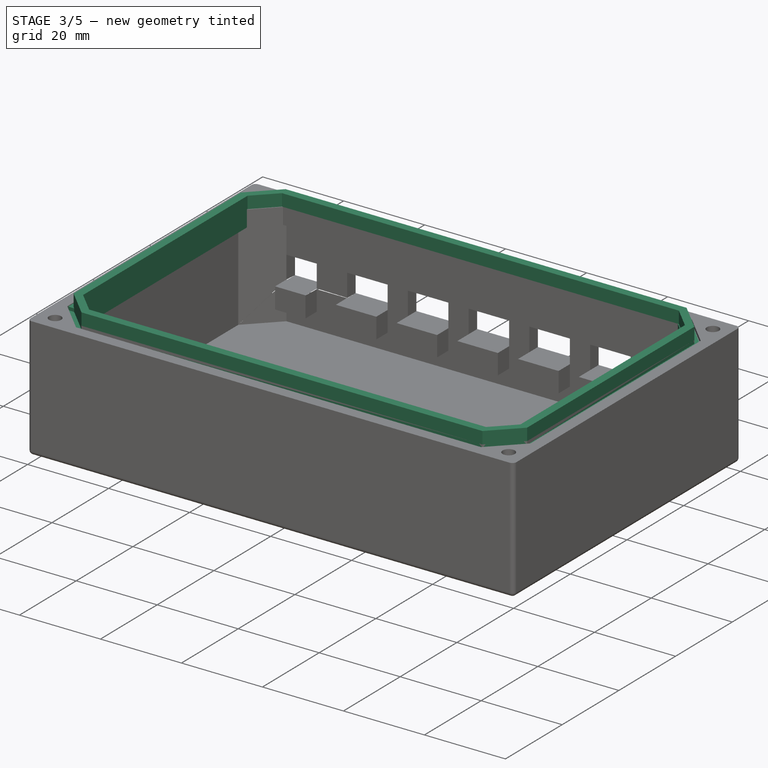
[diagram: stage 3 of 5 — iso view after this stage's code; geometry added in this stage tinted green]
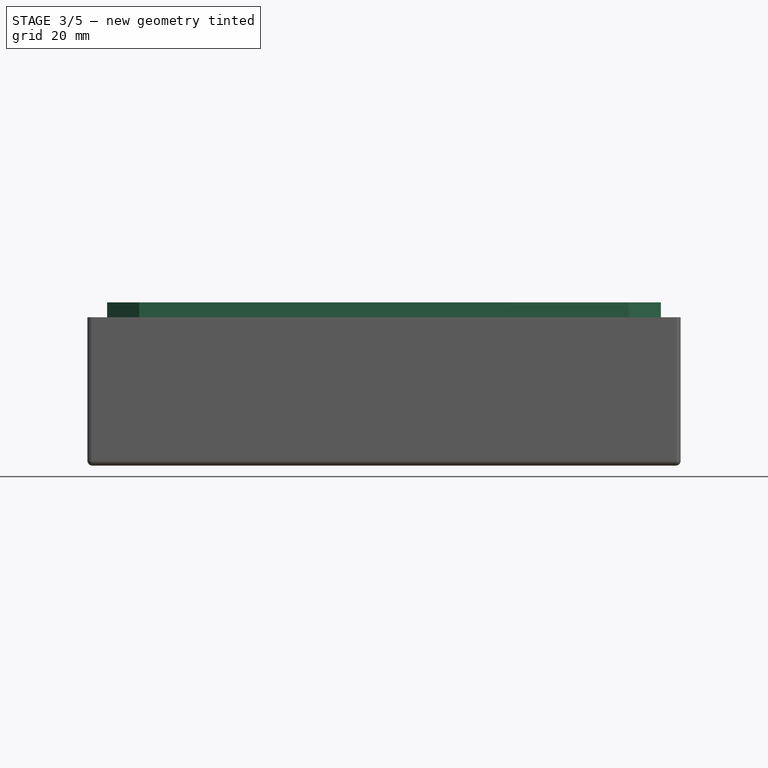
[diagram: stage 3 of 5 — front view after this stage's code; geometry added in this stage tinted green]
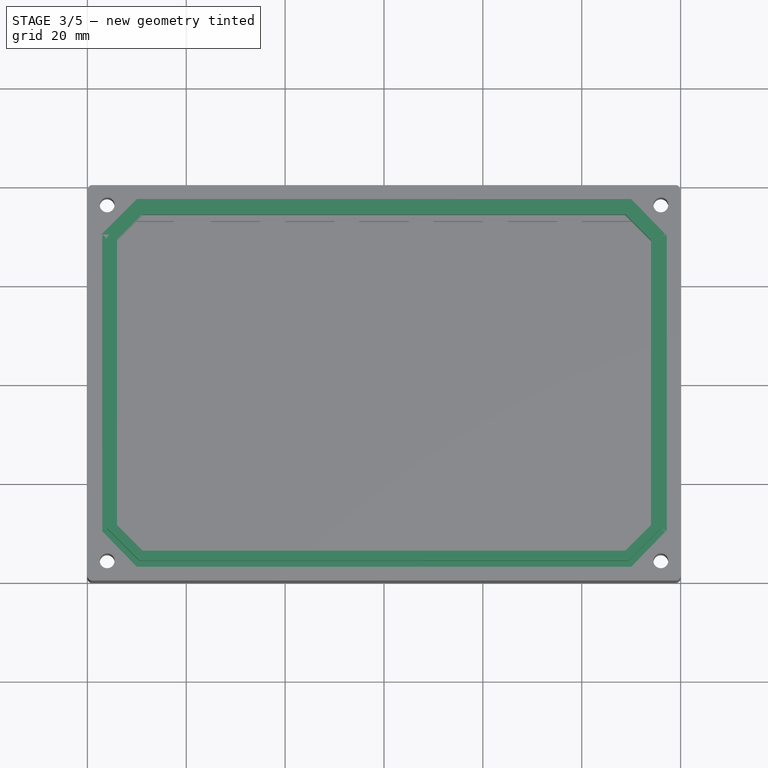
[diagram: stage 3 of 5 — top view after this stage's code; geometry added in this stage tinted green]
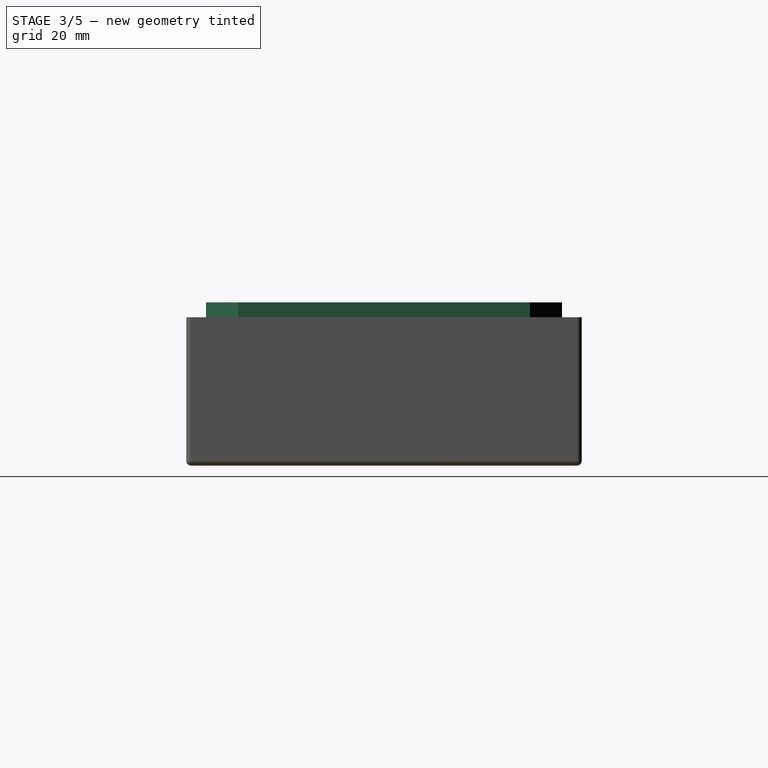
[diagram: stage 3 of 5 — right view after this stage's code; geometry added in this stage tinted green]
FEATURE [PartDesign::Pad] Pad008  label="Overhang010"
  BaseFeature = -> Pad007
  Length = 3
  Length2 = 100
  Profile = -> CopySketch010
  Type = 0
FEATURE [PartDesign::Pad] Pad009  label="Overhang012"
  BaseFeature = -> Pad008
  Length = 3
  Length2 = 100
  Profile = -> CopySketch010001
  Type = 0
FEATURE [PartDesign::Pad] Pad010  label="Overhang014"
  BaseFeature = -> Pad009
  Length = 3
  Length2 = 100
  Profile = -> CopySketch010002
  Type = 0
FEATURE [PartDesign::Pocket] Pocket003  label="Sealing"
  BaseFeature = -> Pad010
  Length = 0.8
  Length2 = 100
  Profile = -> Sketch010
  Type = 0
FEATURE [PartDesign::Pad] Pad011  label="Top Ledge"
  BaseFeature = -> Pocket003
  Length = 3
  Length2 = 100
  Profile = -> Sketch011
  Type = 0
FEATURE [Sketcher::SketchObject] Sketch008
  MapMode = 5
  Placement = pos=(-57,0,0) rot=(0.57735,0.57735,0.57735;2.0944rad)
  Support = -> [Pad011]
  sketch-geometry (4):
    g0: LineSegment StartX=-30 StartY=30 StartZ=0 EndX=30 EndY=30 EndZ=0
    g1: LineSegment StartX=30 StartY=30 StartZ=0 EndX=30 EndY=26 EndZ=0
    g2: LineSegment StartX=30 StartY=26 StartZ=0 EndX=-30 EndY=26 EndZ=0
    g3: LineSegment StartX=-30 StartY=26 StartZ=0 EndX=-30 EndY=30 EndZ=0
  constraints (12):
    c: Coincident(g0,g1)
    c: Coincident(g1,g2)
    c: Coincident(g2,g3)
    c: Coincident(g3,g0)
    c: Horizontal(g0)
    c: Horizontal(g2)
    c: Vertical(g1)
    c: Vertical(g3)
    c: DistanceX(g0) = 30
    c: DistanceY(g0) = 30
    c: DistanceX(g0,g0) = 60
    c: DistanceY(g1,g1) = 4
FEATURE [PartDesign::Pad] Pad012  label="Overhang002"
  BaseFeature = -> Pad011
  Length = 3
  Length2 = 100
  Profile = -> Sketch008
  Type = 0
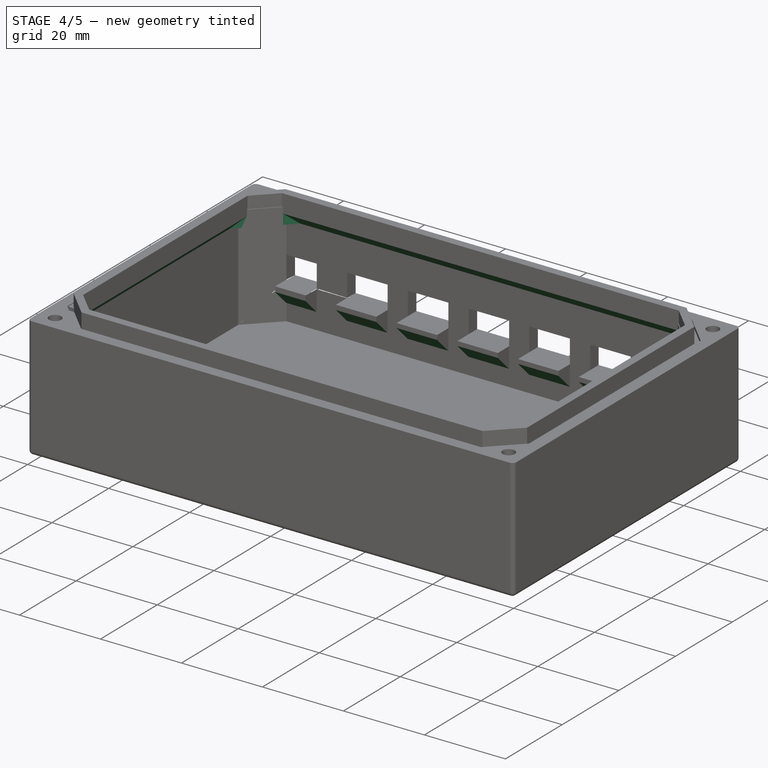
[diagram: stage 4 of 5 — iso view after this stage's code; geometry added in this stage tinted green]
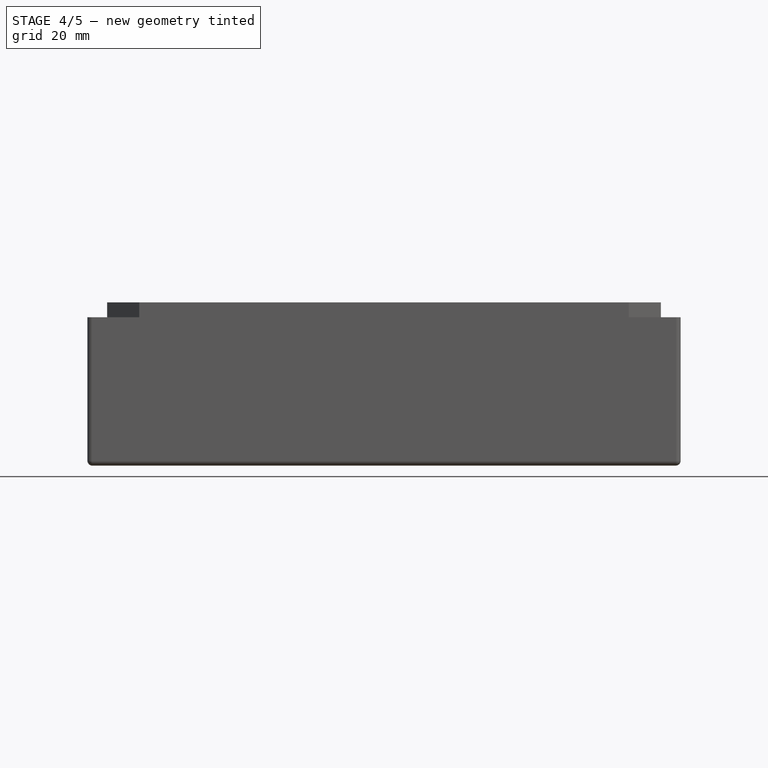
[diagram: stage 4 of 5 — front view after this stage's code; geometry added in this stage tinted green]
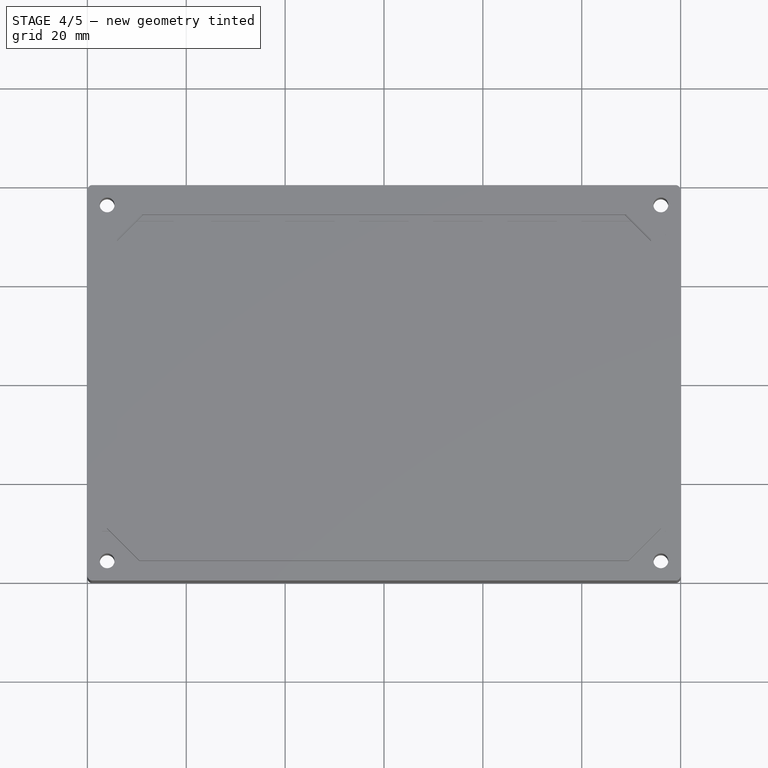
[diagram: stage 4 of 5 — top view after this stage's code; geometry added in this stage tinted green]
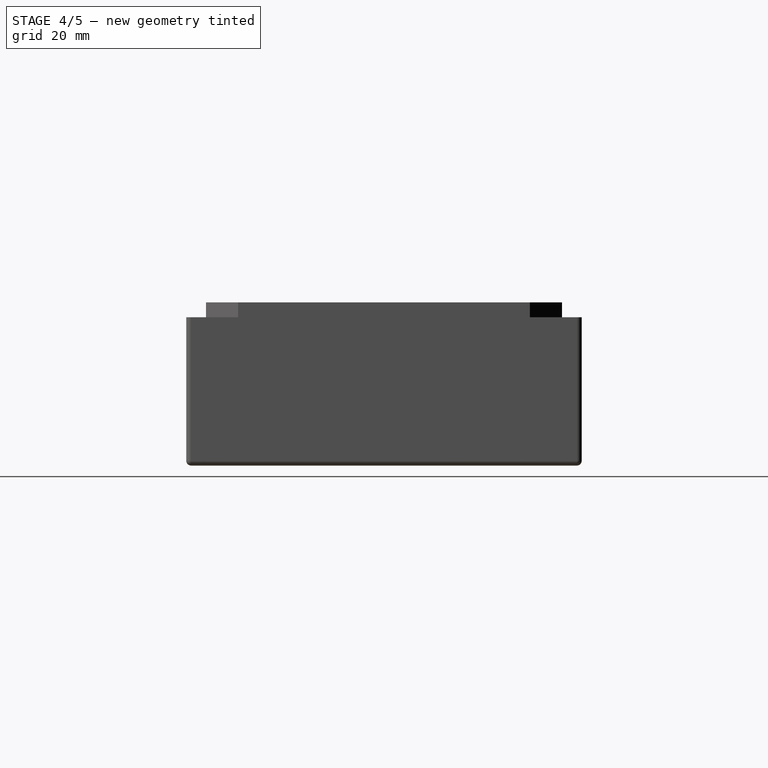
[diagram: stage 4 of 5 — right view after this stage's code; geometry added in this stage tinted green]
FEATURE [PartDesign::Chamfer] Chamfer  label="JST Holders Edge"
  Base = -> Pad012 [Edge371,Edge398,Edge393,Edge376,Edge381,Edge387,Edge363]
  BaseFeature = -> Pad012
  Size = 3.9
FEATURE [PartDesign::Chamfer] Chamfer001
  Base = -> Chamfer [Edge386]
  BaseFeature = -> Chamfer
  Size = 2.5
FEATURE [PartDesign::Chamfer] Chamfer002
  Base = -> Chamfer001 [Edge213]
  BaseFeature = -> Chamfer001
  Size = 2.5
FEATURE [PartDesign::Chamfer] Chamfer003
  Base = -> Chamfer002 [Edge21]
  BaseFeature = -> Chamfer002
  Size = 2.5
FEATURE [PartDesign::Chamfer] Chamfer004
  Base = -> Chamfer003 [Edge210]
  BaseFeature = -> Chamfer003
  Size = 2.5
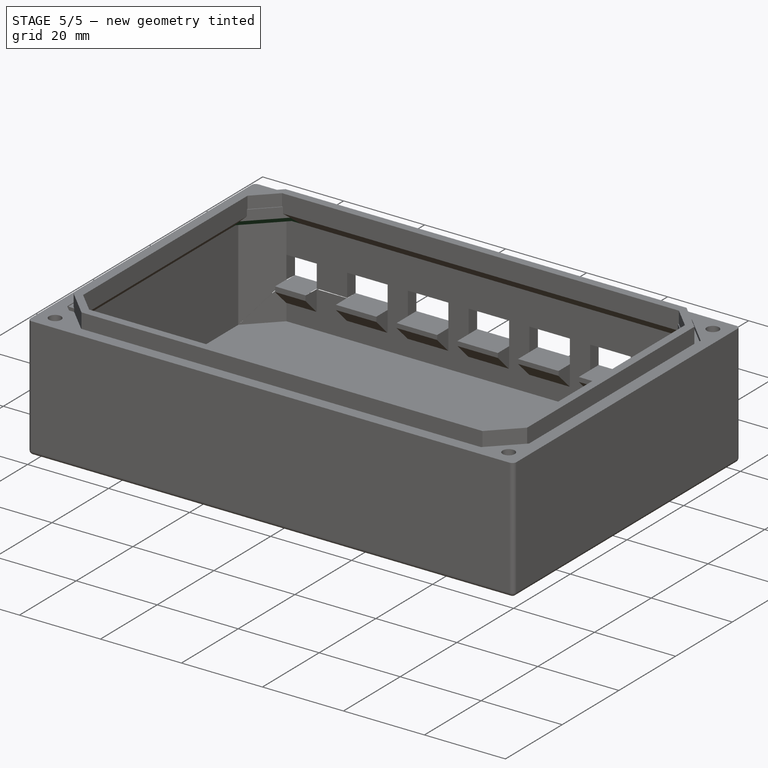
[diagram: stage 5 of 5 — iso view after this stage's code; geometry added in this stage tinted green]
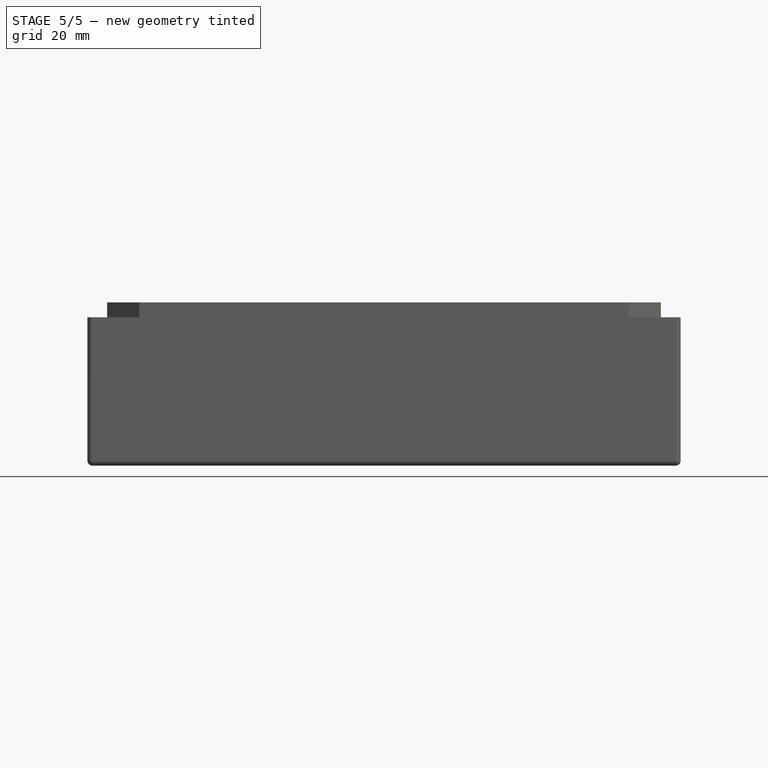
[diagram: stage 5 of 5 — front view after this stage's code; geometry added in this stage tinted green]
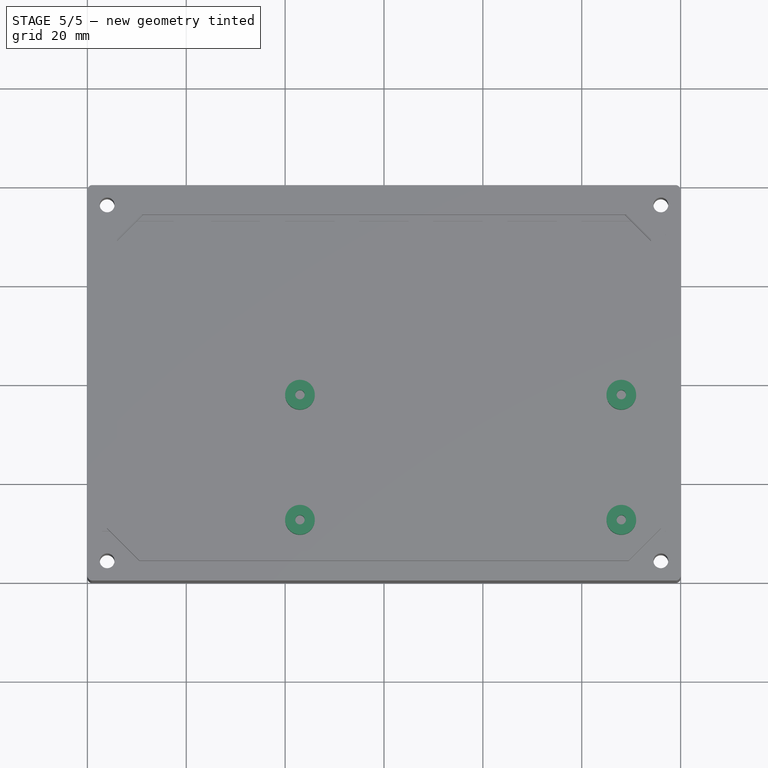
[diagram: stage 5 of 5 — top view after this stage's code; geometry added in this stage tinted green]
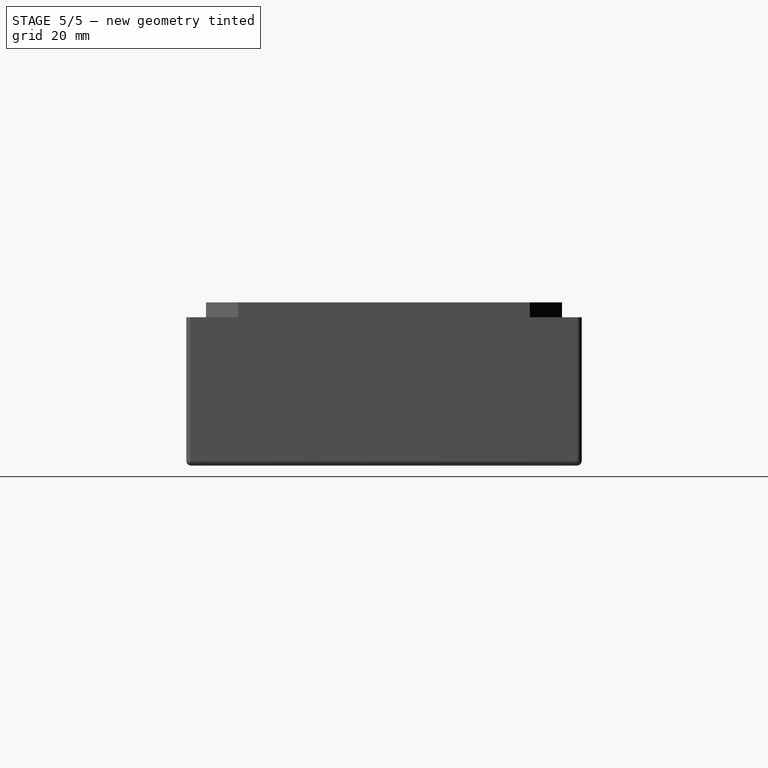
[diagram: stage 5 of 5 — right view after this stage's code; geometry added in this stage tinted green]
FEATURE [PartDesign::Chamfer] Chamfer005
  Base = -> Chamfer004 [Edge46]
  BaseFeature = -> Chamfer004
  Size = 1.48
FEATURE [PartDesign::Chamfer] Chamfer006
  Base = -> Chamfer005 [Edge90]
  BaseFeature = -> Chamfer005
  Size = 1.48
FEATURE [PartDesign::Chamfer] Chamfer007
  Base = -> Chamfer006 [Edge90]
  BaseFeature = -> Chamfer006
  Size = 1.48
FEATURE [PartDesign::Chamfer] Chamfer008
  Base = -> Chamfer007 [Edge101]
  BaseFeature = -> Chamfer007
  Size = 1.48
FEATURE [Sketcher::SketchObject] Sketch012
  MapMode = 5
  Placement = pos=(0,0,3) rot=(0,0,1;0rad)
  Support = -> [Chamfer008]
  sketch-geometry (8):
    g0: Circle CenterX=-17 CenterY=-27.3 CenterZ=0 NormalX=0 NormalY=0 NormalZ=1 AngleXU=0 Radius=0.95
    g1: Circle CenterX=-17 CenterY=-27.3 CenterZ=0 NormalX=0 NormalY=0 NormalZ=1 AngleXU=0 Radius=3
    g2: Circle CenterX=48 CenterY=-27.3 CenterZ=0 NormalX=0 NormalY=0 NormalZ=1 AngleXU=0 Radius=0.95
    g3: Circle CenterX=48 CenterY=-27.3 CenterZ=0 NormalX=0 NormalY=0 NormalZ=1 AngleXU=0 Radius=3
    g4: Circle CenterX=-17 CenterY=-2 CenterZ=0 NormalX=0 NormalY=0 NormalZ=1 AngleXU=0 Radius=0.95
    g5: Circle CenterX=-17 CenterY=-2 CenterZ=0 NormalX=0 NormalY=0 NormalZ=1 AngleXU=0 Radius=3
    g6: Circle CenterX=48 CenterY=-2 CenterZ=0 NormalX=0 NormalY=0 NormalZ=1 AngleXU=0 Radius=0.95
    g7: Circle CenterX=48 CenterY=-2 CenterZ=0 NormalX=0 NormalY=0 NormalZ=1 AngleXU=0 Radius=3
  constraints (19):
    c: Coincident(g0,g1)
    c: Radius(g0) = 0.95
    c: Radius(g1) = 3
    c: Coincident(g2,g3)
    c: Equal(g0,g2) = 1.45
    c: Equal(g1,g3) = 3
    c: Coincident(g4,g5)
    c: Equal(g0,g4) = 1.45
    c: Equal(g1,g5) = 3
    c: Coincident(g6,g7)
    c: Distance(g6,g2) = 25.3
    c: Distance(g4,g6) = 65
    c: Distance(g4,g0) = 25.3
    c: Distance(g0,g2) = 65
    c: Distance(g6,g-1) = 2
    c: Distance(g4,g-1) = 2
    c: Distance(g2,g-2) = 48
    c: Distance(g6,g-2) = 48
    c: Equal(g0,g6)
FEATURE [PartDesign::Pad] Pad013  label="PCB Screw Holders"
  BaseFeature = -> Chamfer008
  Length = 5
  Length2 = 100
  Profile = -> Sketch012
  Type = 0
FEATURE [PartDesign::Body] Body
  Group = -> [Sketch,Pad,Sketch001,Pocket,Sketch002,Pocket001,Fillet,Sketch003,Pocket002,Sketch005,Pad002,Sketch006,Pad003,Pad004,Sketch007,Pad005,Sketch008,Sketch009,Pad007,Pad008,Pad009,Pad010,Sketch010,Pocket003,Sketch011,Pad011,Pad012,Chamfer,Chamfer001,Chamfer002,Chamfer003,Chamfer004,Chamfer005,Chamfer006,Chamfer007,Chamfer008,Sketch012,Pad013]
  Origin = -> Origin
  Tip = -> Pad013
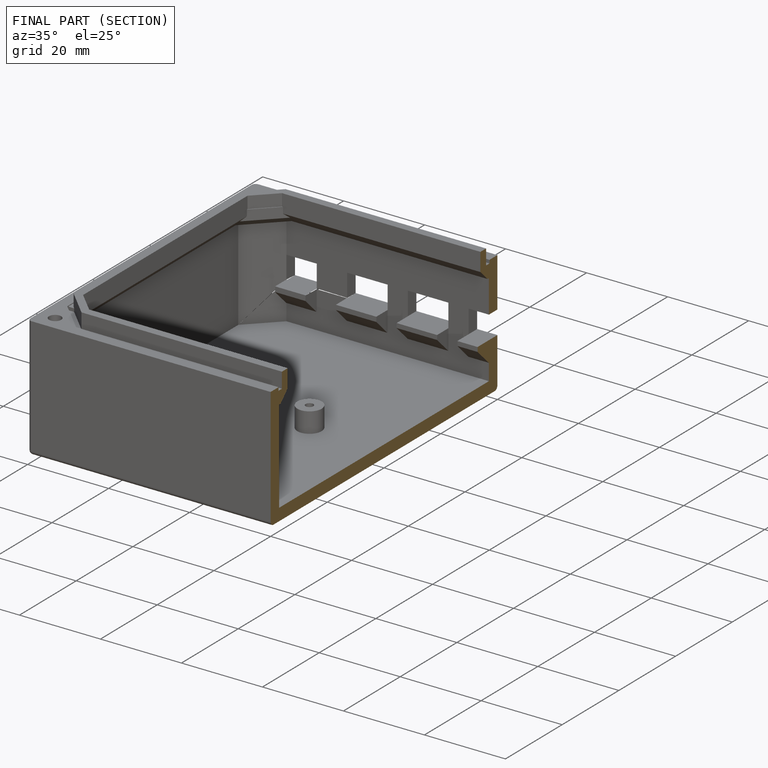
[diagram: finished part — half-section view (interior)]
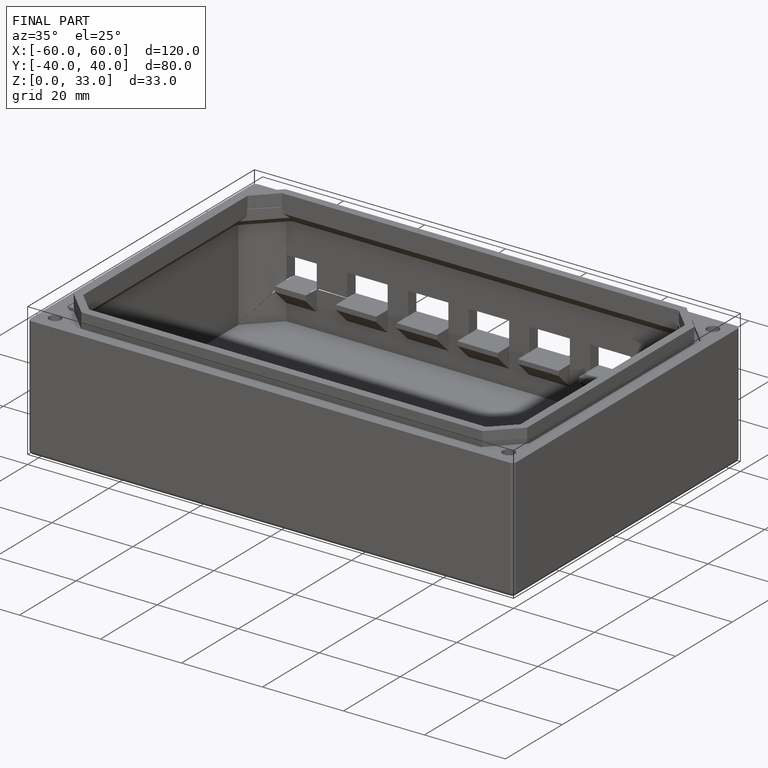
[diagram: finished part — iso view with bounding-box wireframe]
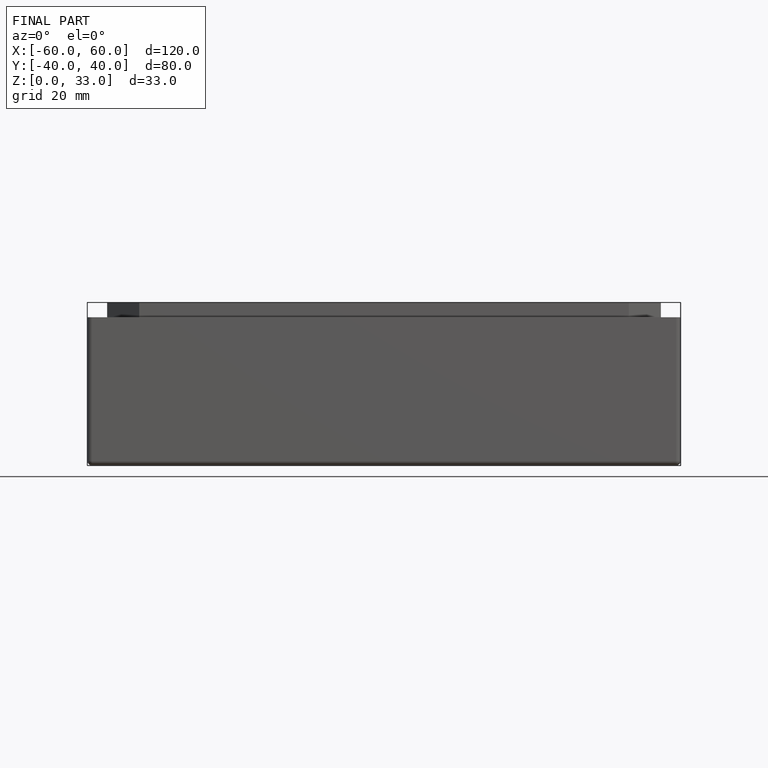
[diagram: finished part — front view with bounding-box wireframe]
